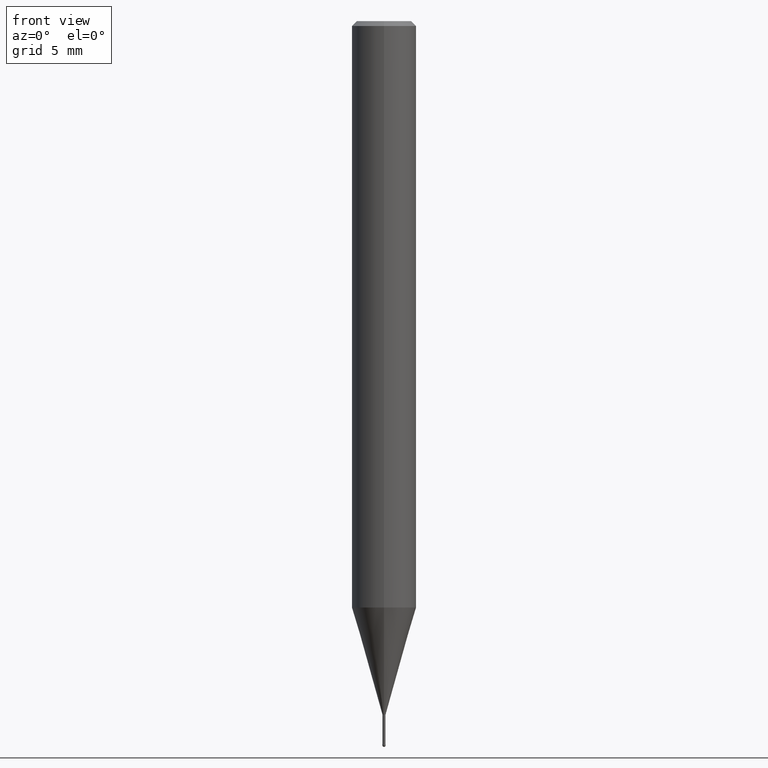
[diagram: clean part render]
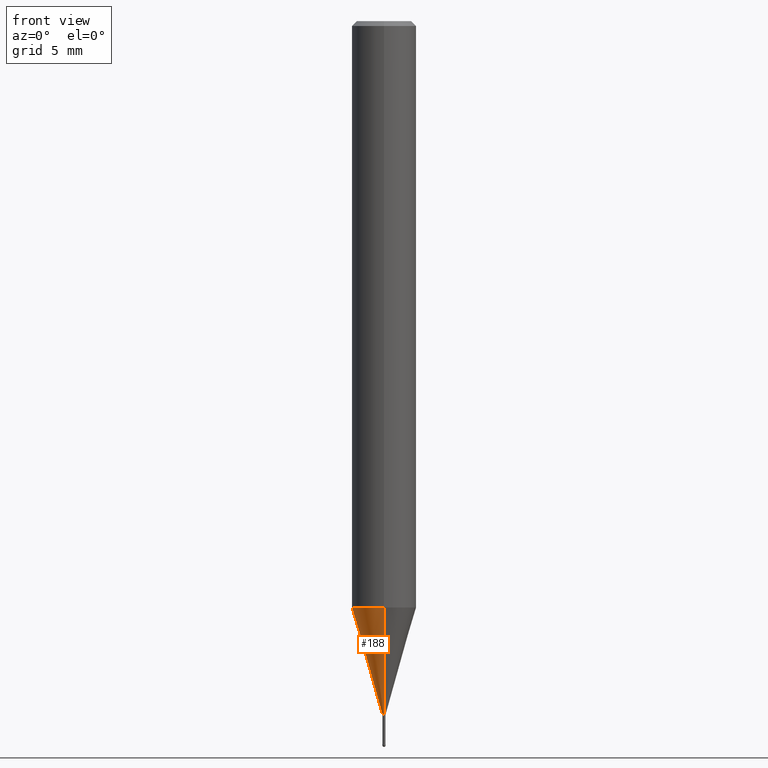
[diagram: same view with one face highlighted and labeled with its STEP entity id]
A machine part, front view. The second image highlights one B-rep face of the part: STEP entity #188.
In plain terms, the highlighted conical surface has half-angle 15.999 deg.
Its self-contained STEP definition (entity closure, byte-faithful):
#108=EDGE_CURVE('',#190,#210,#251,.T.);
#110=VERTEX_POINT('',#253);
#116=VERTEX_POINT('',#260);
#154=EDGE_CURVE('',#110,#116,#305,.T.);
#180=EDGE_CURVE('',#190,#116,#333,.T.);
#188=ADVANCED_FACE('',(#342),#343,.T.);
#190=VERTEX_POINT('',#345);
#210=VERTEX_POINT('',#367);
#214=EDGE_CURVE('',#210,#110,#372,.T.);
#251=LINE('',#405,#406);
#253=CARTESIAN_POINT('',(0.0,1.99995,-36.356));
#260=CARTESIAN_POINT('',(0.0,0.09495,-43.0));
#305=LINE('',#469,#470);
#333=CIRCLE('',#510,0.09495);
#342=FACE_OUTER_BOUND('',#521,.T.);
#343=CONICAL_SURFACE('',#522,1.04745,0.279233718115795);
#345=CARTESIAN_POINT('',(1.16276373295435E-017,-0.09495,-43.0));
#367=CARTESIAN_POINT('',(2.44915147732706E-016,-1.99995,-36.356));
#372=CIRCLE('',#557,1.99995);
#405=CARTESIAN_POINT('',(1.28271392531125E-016,-1.04745,-39.678));
#406=VECTOR('',#577,1.0);
#469=CARTESIAN_POINT('',(-1.28271392531125E-016,1.04745,-39.678));
#470=VECTOR('',#650,1.0);
#510=AXIS2_PLACEMENT_3D('',#685,#686,#687);
#521=EDGE_LOOP('',(#698,#699,#700,#701));
#522=AXIS2_PLACEMENT_3D('',#702,#703,#704);
#557=AXIS2_PLACEMENT_3D('',#737,#738,#739);
#577=DIRECTION('',(3.37524935540219E-017,-0.275619128127744,0.961266922457078));
#650=DIRECTION('',(3.37524935540219E-017,-0.275619128127744,-0.961266922457078));
#685=CARTESIAN_POINT('',(0.0,0.0,-43.0));
#686=DIRECTION('',(0.0,0.0,-1.0));
#687=DIRECTION('',(0.0,1.0,0.0));
#698=ORIENTED_EDGE('',*,*,#154,.T.);
#699=ORIENTED_EDGE('',*,*,#180,.F.);
#700=ORIENTED_EDGE('',*,*,#108,.T.);
#701=ORIENTED_EDGE('',*,*,#214,.T.);
#702=CARTESIAN_POINT('',(0.0,0.0,-39.678));
#703=DIRECTION('',(-0.0,-0.0,1.0));
#704=DIRECTION('',(0.0,1.0,0.0));
#737=CARTESIAN_POINT('',(0.0,0.0,-36.356));
#738=DIRECTION('',(0.0,0.0,-1.0));
#739=DIRECTION('',(0.0,1.0,0.0));